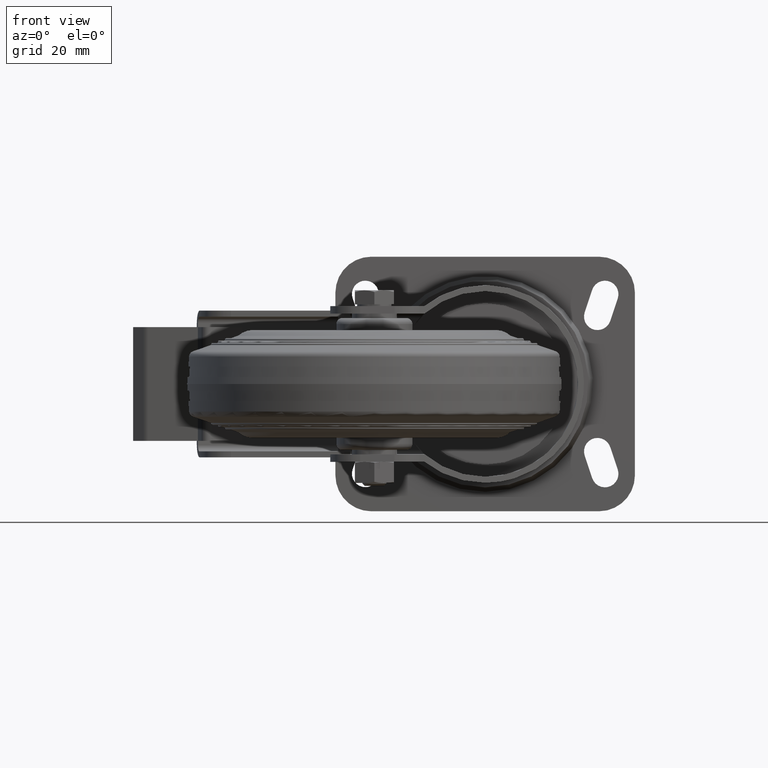
[diagram: clean part render]
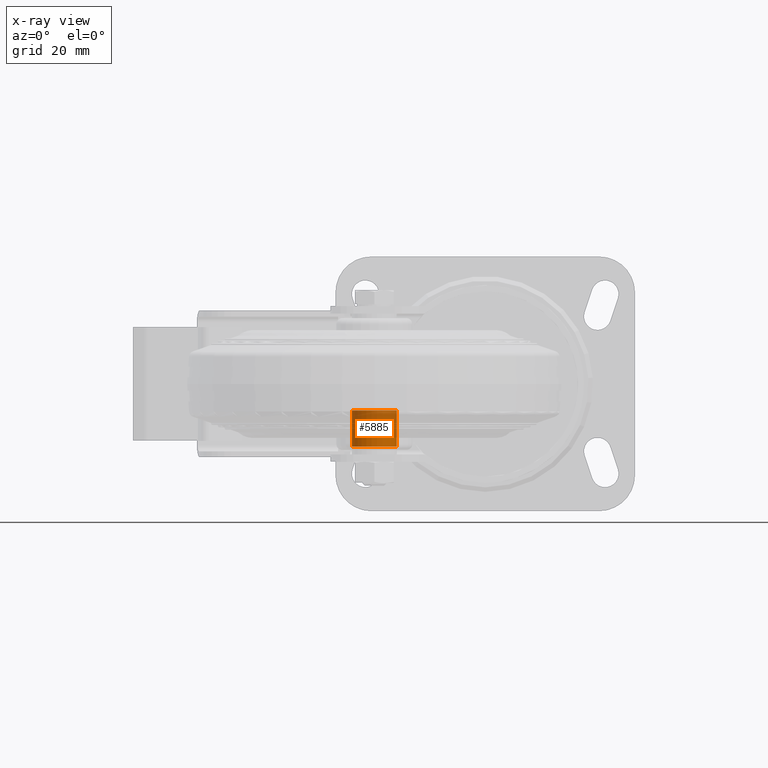
[diagram: x-ray — body ghosted, one internal face saturated and labeled with its STEP entity id]
A machine part, front view, then the same camera in x-ray: the body is ghosted and one INTERNAL B-rep face — a face not visible from any outside direction — is saturated and labeled: STEP entity #5885.
In plain terms, the highlighted cylindrical surface (bore or boss wall) has radius 7.5 mm, axis along (0, 0, -1).
Its self-contained STEP definition (entity closure, byte-faithful):
#122=CYLINDRICAL_SURFACE('',#6278,7.5);
#291=CIRCLE('',#6277,7.5);
#292=CIRCLE('',#6279,7.5);
#542=FACE_OUTER_BOUND('',#890,.T.);
#890=EDGE_LOOP('',(#3790,#3791,#3792,#3793));
#1301=LINE('',#8758,#1828);
#1828=VECTOR('',#6983,7.5);
#2372=VERTEX_POINT('',#8754);
#2373=VERTEX_POINT('',#8757);
#2927=EDGE_CURVE('',#2372,#2372,#291,.T.);
#2928=EDGE_CURVE('',#2372,#2373,#1301,.T.);
#2929=EDGE_CURVE('',#2373,#2373,#292,.T.);
#3790=ORIENTED_EDGE('',*,*,#2927,.T.);
#3791=ORIENTED_EDGE('',*,*,#2928,.T.);
#3792=ORIENTED_EDGE('',*,*,#2929,.F.);
#3793=ORIENTED_EDGE('',*,*,#2928,.F.);
#5885=ADVANCED_FACE('',(#542),#122,.F.);
#6277=AXIS2_PLACEMENT_3D('',#8755,#6979,#6980);
#6278=AXIS2_PLACEMENT_3D('',#8756,#6981,#6982);
#6279=AXIS2_PLACEMENT_3D('',#8759,#6984,#6985);
#6979=DIRECTION('center_axis',(0.,0.,1.));
#6980=DIRECTION('ref_axis',(1.,0.,0.));
#6981=DIRECTION('center_axis',(0.,0.,-1.));
#6982=DIRECTION('ref_axis',(1.,0.,0.));
#6983=DIRECTION('',(0.,0.,-1.));
#6984=DIRECTION('center_axis',(0.,0.,1.));
#6985=DIRECTION('ref_axis',(1.,0.,0.));
#8754=CARTESIAN_POINT('',(-7.5,9.18485099360515E-16,-8.8));
#8755=CARTESIAN_POINT('Origin',(0.,0.,-8.8));
#8756=CARTESIAN_POINT('Origin',(0.,0.,0.));
#8757=CARTESIAN_POINT('',(-7.5,9.18485099360515E-16,-21.));
#8758=CARTESIAN_POINT('',(-7.5,9.18485099360515E-16,0.));
#8759=CARTESIAN_POINT('Origin',(0.,0.,-21.));